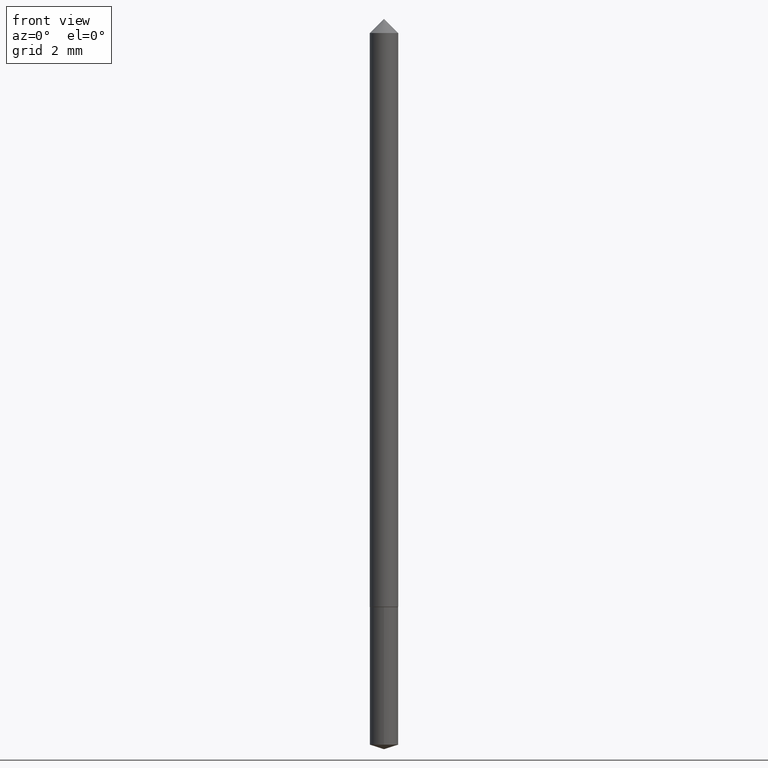
[diagram: clean part render]
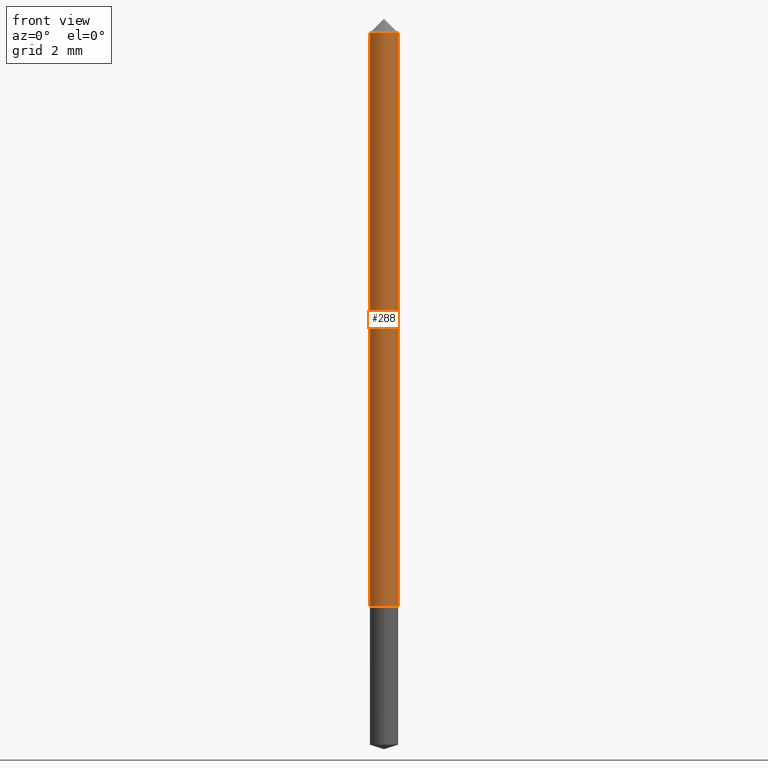
[diagram: same view with one face highlighted and labeled with its STEP entity id]
A machine part, front view. The second image highlights one B-rep face of the part: STEP entity #288.
In plain terms, the highlighted cylindrical surface (edge-blend (fillet) strip) has radius 0.5004 mm, axis along (-0, 0, 1).
Its self-contained STEP definition (entity closure, byte-faithful):
#20 = EDGE_CURVE ( 'NONE', #58, #223, #203, .T. ) ;
#22 = CARTESIAN_POINT ( 'NONE',  ( -0.01970000000000000223, -1.357082992117728466E-15, -0.03125000000000020123 ) ) ;
#28 = DIRECTION ( 'NONE',  ( -2.445468806185136597E-29, 3.491481338843145583E-15, 1.000000000000000000 ) ) ;
#42 = AXIS2_PLACEMENT_3D ( 'NONE', #106, #48, #215 ) ;
#48 = DIRECTION ( 'NONE',  ( -2.445468806185136597E-29, 3.491481338843145583E-15, 1.000000000000000000 ) ) ;
#50 = DIRECTION ( 'NONE',  ( -2.445468806185136597E-29, 3.491481338843145583E-15, 1.000000000000000000 ) ) ;
#54 = EDGE_LOOP ( 'NONE', ( #171, #310, #111, #364 ) ) ;
#58 = VERTEX_POINT ( 'NONE', #236 ) ;
#65 = VECTOR ( 'NONE', #266, 39.37007874015748143 ) ;
#79 = CARTESIAN_POINT ( 'NONE',  ( 0.000000000000000000, 0.000000000000000000, 0.000000000000000000 ) ) ;
#82 = VERTEX_POINT ( 'NONE', #290 ) ;
#106 = CARTESIAN_POINT ( 'NONE',  ( 2.020690874550778472E-29, -2.885011030286090788E-15, -0.8263000000000000345 ) ) ;
#111 = ORIENTED_EDGE ( 'NONE', *, *, #309, .T. ) ;
#126 = LINE ( 'NONE', #193, #245 ) ;
#148 = AXIS2_PLACEMENT_3D ( 'NONE', #224, #28, #356 ) ;
#165 = DIRECTION ( 'NONE',  ( 1.000000000000000000, -6.982962677686266711E-15, 4.876176775795936353E-29 ) ) ;
#171 = ORIENTED_EDGE ( 'NONE', *, *, #20, .F. ) ;
#174 = CARTESIAN_POINT ( 'NONE',  ( -0.01970000000000004733, 1.399769189447400729E-16, -9.690302127802188776E-31 ) ) ;
#191 = FACE_OUTER_BOUND ( 'NONE', #54, .T. ) ;
#193 = CARTESIAN_POINT ( 'NONE',  ( 0.01970000000000004733, -1.375643647504197814E-16, 9.606068248318017740E-31 ) ) ;
#203 = LINE ( 'NONE', #174, #65 ) ;
#204 = EDGE_CURVE ( 'NONE', #58, #82, #264, .T. ) ;
#211 = AXIS2_PLACEMENT_3D ( 'NONE', #79, #50, #165 ) ;
#215 = DIRECTION ( 'NONE',  ( 1.000000000000000000, -6.982962677686268288E-15, 0.000000000000000000 ) ) ;
#223 = VERTEX_POINT ( 'NONE', #22 ) ;
#224 = CARTESIAN_POINT ( 'NONE',  ( 7.642090019328601786E-31, -1.091087918388490144E-16, -0.03125000000000020123 ) ) ;
#235 = CIRCLE ( 'NONE', #148, 0.01970000000000000223 ) ;
#236 = CARTESIAN_POINT ( 'NONE',  ( -0.01970000000000009938, -2.745034111341350691E-15, -0.8263000000000000345 ) ) ;
#245 = VECTOR ( 'NONE', #305, 39.37007874015748143 ) ;
#247 = EDGE_CURVE ( 'NONE', #223, #306, #235, .T. ) ;
#264 = CIRCLE ( 'NONE', #42, 0.01970000000000009938 ) ;
#266 = DIRECTION ( 'NONE',  ( -2.445468806185136877E-29, 3.491481338843145188E-15, 1.000000000000000000 ) ) ;
#276 = CARTESIAN_POINT ( 'NONE',  ( 0.01970000000000000223, -2.466731565892684629E-16, -0.03125000000000020123 ) ) ;
#288 = ADVANCED_FACE ( 'NONE', ( #191 ), #302, .T. ) ;
#290 = CARTESIAN_POINT ( 'NONE',  ( 0.01970000000000009938, -3.022575395036511186E-15, -0.8263000000000000345 ) ) ;
#302 = CYLINDRICAL_SURFACE ( 'NONE', #211, 0.01970000000000004733 ) ;
#305 = DIRECTION ( 'NONE',  ( -2.445468806185136877E-29, 3.491481338843145188E-15, 1.000000000000000000 ) ) ;
#306 = VERTEX_POINT ( 'NONE', #276 ) ;
#309 = EDGE_CURVE ( 'NONE', #82, #306, #126, .T. ) ;
#310 = ORIENTED_EDGE ( 'NONE', *, *, #204, .T. ) ;
#356 = DIRECTION ( 'NONE',  ( 1.000000000000000000, -6.982962677686267499E-15, 0.000000000000000000 ) ) ;
#364 = ORIENTED_EDGE ( 'NONE', *, *, #247, .F. ) ;